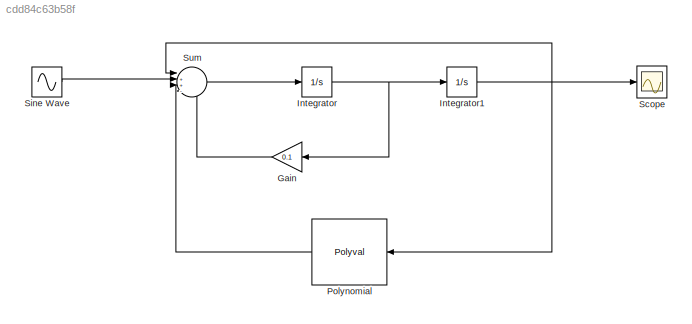
MODEL slx_cdd84c63b58f
KIND model
CONFIG AbsTol = auto
CONFIG EnableMultiTasking = off
CONFIG FixedStep = auto
CONFIG MaxStep = auto
CONFIG MinStep = auto
CONFIG RelTol = 1e-3
CONFIG SampleTimeConstraint = Unconstrained
CONFIG Solver = VariableStepAuto
CONFIG SolverName = VariableStepAuto
CONFIG StartTime = 0.0
CONFIG StopTime = 250
BLOCK [Gain] Gain
  Gain = 0.1
BLOCK [Integrator] Integrator
  InitialCondition = 0.29
  Ports = [1, 1]
BLOCK [Integrator] Integrator1
  InitialCondition = 0.585
  Ports = [1, 1]
BLOCK [Polyval] Polynomial
  Coefs = [1,0,0,0]
BLOCK [Scope] Scope
  Floating = off
  NumInputPorts = 1
  Ports = [1]
  ScopeSpecificationString = Simulink.scopes.TimeScopeBlockCfg('CurrentConfiguration', extmgr.ConfigurationSet(extmgr.Configuration('Core','General UI',true),extmgr.Configuration('Core','Source UI',true),extmgr.Configuration('Sources','WiredSimulink',true),extmgr.Configuration('Visuals','Time Domain',true,'SerializedDisplays',{struct('MinYLimReal','0.38019','MaxYLimReal','1.42751','YLabelReal','','MinYLimMag','0.38019','MaxYL...<+1356ch>
BLOCK [Sin] Sine Wave
  Amplitude = 0.07
  Frequency = 1.25
  Phase = pi/2
  Ports = [0, 1]
  SampleTime = 0
BLOCK [Sum] Sum
  Inputs = |++--
  Ports = [4, 1]
LINE Gain:1 -> Sum:4
NET Integrator1:1 -> Polynomial:1, Scope:1, Sum:1
NET Integrator:1 -> Gain:1, Integrator1:1
LINE Polynomial:1 -> Sum:3
LINE Sine Wave:1 -> Sum:2
LINE Sum:1 -> Integrator:1
note: NET lines group one-source signal fan-out (src -> all destinations, sorted); 1:1 wires keep LINE
